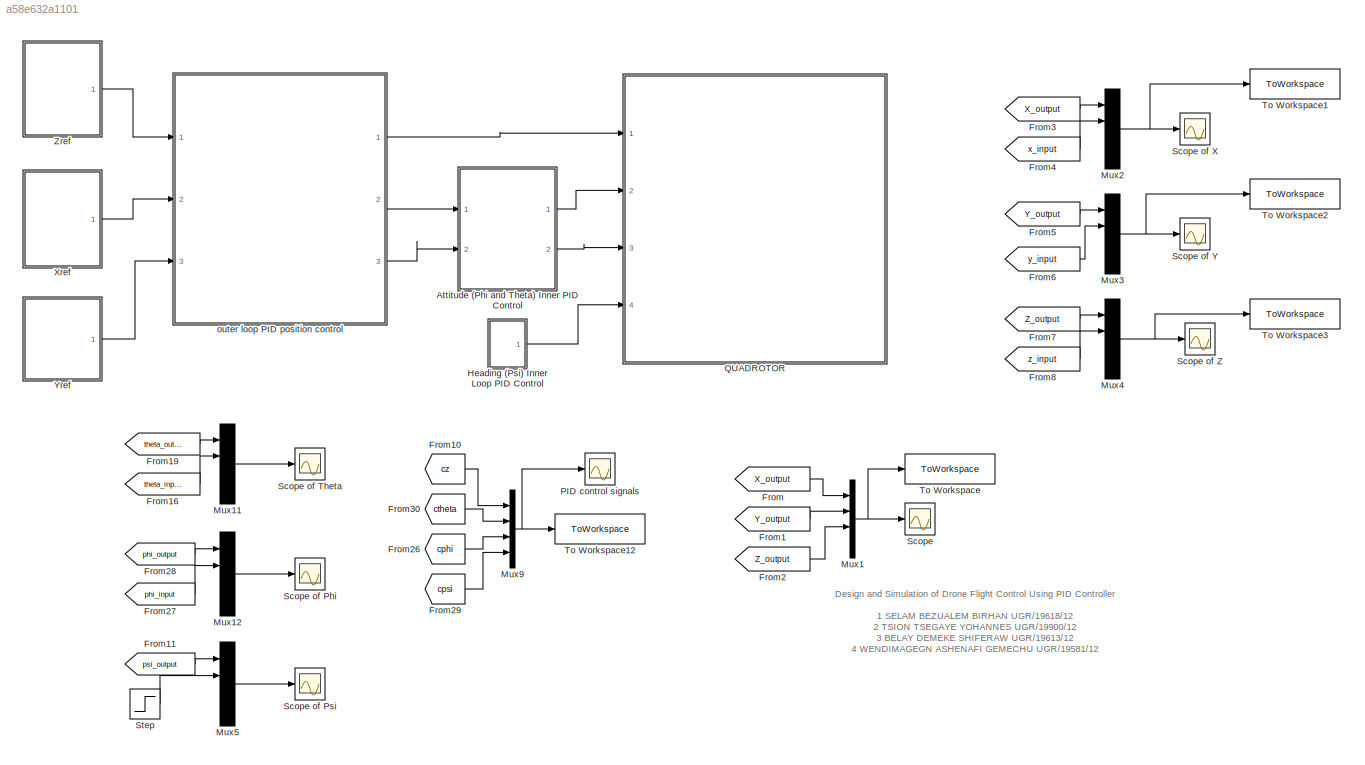
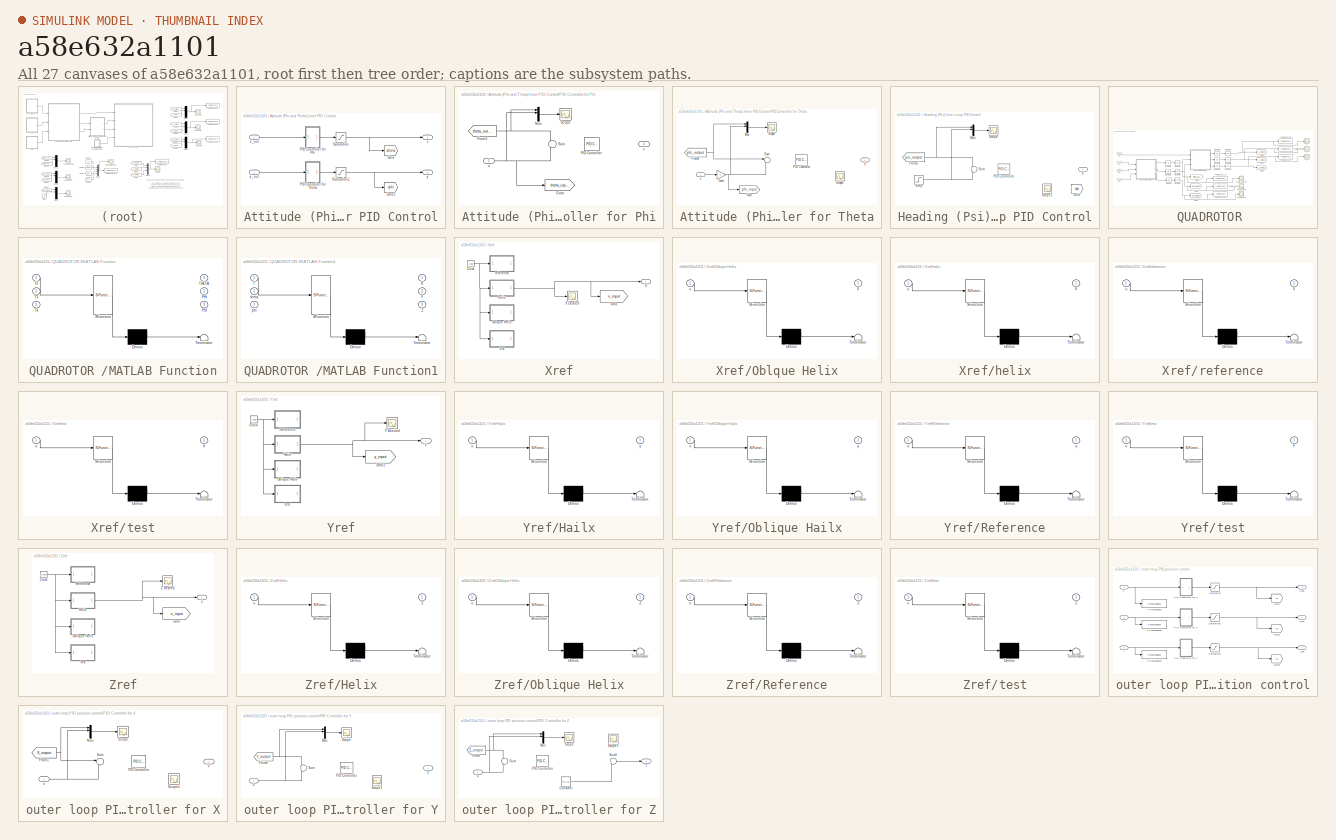
[diagram: thumbnail index - all 27 canvases of the model, root first then tree order]
MODEL slx_a58e632a1101
KIND model
CONFIG AbsTol = auto
CONFIG EnableMultiTasking = off
CONFIG FixedStep = 1e-4
CONFIG MaxStep = 1e-2
CONFIG MinStep = auto
CONFIG RelTol = 1e-3
CONFIG SampleTimeConstraint = Unconstrained
CONFIG SolverName = VariableStepAuto
CONFIG StartTime = 0
CONFIG StopTime = 30
BLOCK [SubSystem] Attitude (Phi and Theta) Inner PID Control
  Ports = [2, 2]
  RequestExecContextInheritance = off
BLOCK [Goto] Attitude (Phi and Theta) Inner PID Control/Goto
  GotoTag = ctheta
  TagVisibility = global
BLOCK [Goto] Attitude (Phi and Theta) Inner PID Control/Goto1
  GotoTag = cphi
  TagVisibility = global
BLOCK [SubSystem] Attitude (Phi and Theta) Inner PID Control/PID Controller for Phi
  Ports = [1, 1]
  RequestExecContextInheritance = off
BLOCK [From] Attitude (Phi and Theta) Inner PID Control/PID Controller for Phi/From3
  GotoTag = theta_output
  TagVisibility = global
BLOCK [Goto] Attitude (Phi and Theta) Inner PID Control/PID Controller for Phi/Goto
  GotoTag = theta_input
  TagVisibility = global
BLOCK [Mux] Attitude (Phi and Theta) Inner PID Control/PID Controller for Phi/Mux
  DisplayOption = bar
  Inputs = 2
  Ports = [4, 1]
BLOCK [Reference] Attitude (Phi and Theta) Inner PID Control/PID Controller for Phi/PID Controller  REF=slpidlib/PID Controller
  Ports = []
  SourceBlock = slpidlib/PID Controller
  SourceType = PID 1dof
BLOCK [Scope] Attitude (Phi and Theta) Inner PID Control/PID Controller for Phi/Scope
  Floating = off
  NumInputPorts = 1
  Ports = [1]
  ScopeSpecificationString = Simulink.scopes.TimeScopeBlockCfg('CurrentConfiguration', extmgr.ConfigurationSet(extmgr.Configuration('Core','General UI',true),extmgr.Configuration('Core','Source UI',true),extmgr.Configuration('Sources','WiredSimulink',true,'DataLoggingVariableName','ScopeData5'),extmgr.Configuration('Visuals','Time Domain',true,'SerializedDisplays',{struct('MinYLimReal','-0.08785','MaxYLimReal','0.09154','YLab...<+1401ch>
BLOCK [Sum] Attitude (Phi and Theta) Inner PID Control/PID Controller for Phi/Sum
  Inputs = -+
  Ports = [2, 1]
BLOCK [Inport] Attitude (Phi and Theta) Inner PID Control/PID Controller for Phi/u
BLOCK [Outport] Attitude (Phi and Theta) Inner PID Control/PID Controller for Phi/x
BLOCK [SubSystem] Attitude (Phi and Theta) Inner PID Control/PID Controller for Theta
  Ports = [1, 1]
  RequestExecContextInheritance = off
BLOCK [From] Attitude (Phi and Theta) Inner PID Control/PID Controller for Theta/From4
  GotoTag = phi_output
  TagVisibility = global
BLOCK [Gain] Attitude (Phi and Theta) Inner PID Control/PID Controller for Theta/Gain
  Gain = -1
BLOCK [Goto] Attitude (Phi and Theta) Inner PID Control/PID Controller for Theta/Goto
  GotoTag = phi_input
  TagVisibility = global
BLOCK [Mux] Attitude (Phi and Theta) Inner PID Control/PID Controller for Theta/Mux
  DisplayOption = bar
  Inputs = 2
  Ports = [4, 1]
BLOCK [Reference] Attitude (Phi and Theta) Inner PID Control/PID Controller for Theta/PID Controller  REF=slpidlib/PID Controller
  Ports = []
  SourceBlock = slpidlib/PID Controller
  SourceType = PID 1dof
BLOCK [Scope] Attitude (Phi and Theta) Inner PID Control/PID Controller for Theta/Scope
  Floating = off
  NumInputPorts = 1
  Ports = [1]
  ScopeSpecificationString = Simulink.scopes.TimeScopeBlockCfg('CurrentConfiguration', extmgr.ConfigurationSet(extmgr.Configuration('Core','General UI',true),extmgr.Configuration('Core','Source UI',true),extmgr.Configuration('Sources','WiredSimulink',true,'DataLoggingVariableName','ScopeData1'),extmgr.Configuration('Visuals','Time Domain',true,'SerializedDisplays',{struct('MinYLimReal','-0.24256','MaxYLimReal','0.25431','YLab...<+1404ch>
BLOCK [Scope] Attitude (Phi and Theta) Inner PID Control/PID Controller for Theta/Scope1
  Floating = off
  NumInputPorts = 1
  Ports = [1]
  ScopeSpecificationString = Simulink.scopes.TimeScopeBlockCfg('CurrentConfiguration', extmgr.ConfigurationSet(extmgr.Configuration('Core','General UI',true),extmgr.Configuration('Core','Source UI',true),extmgr.Configuration('Sources','WiredSimulink',true,'DataLoggingVariableName','ScopeData3'),extmgr.Configuration('Visuals','Time Domain',true,'SerializedDisplays',{struct('MinYLimReal','-3.96845','MaxYLimReal','3.99625','YLab...<+1373ch>
BLOCK [Sum] Attitude (Phi and Theta) Inner PID Control/PID Controller for Theta/Sum
  Inputs = -+
  Ports = [2, 1]
BLOCK [Inport] Attitude (Phi and Theta) Inner PID Control/PID Controller for Theta/u
BLOCK [Outport] Attitude (Phi and Theta) Inner PID Control/PID Controller for Theta/y
BLOCK [Saturate] Attitude (Phi and Theta) Inner PID Control/Saturation
  LowerLimit = -1
  UpperLimit = 1
BLOCK [Saturate] Attitude (Phi and Theta) Inner PID Control/Saturation1
  LowerLimit = -1
  UpperLimit = 1
BLOCK [Outport] Attitude (Phi and Theta) Inner PID Control/x
BLOCK [Inport] Attitude (Phi and Theta) Inner PID Control/x_out
BLOCK [Outport] Attitude (Phi and Theta) Inner PID Control/y
  Port = 2
BLOCK [Inport] Attitude (Phi and Theta) Inner PID Control/y_out
  Port = 2
BLOCK [From] From
  GotoTag = X_output
  TagVisibility = global
BLOCK [From] From1
  GotoTag = Y_output
  TagVisibility = global
BLOCK [From] From10
  GotoTag = cz
  NameLocation = top
  TagVisibility = global
BLOCK [From] From11
  GotoTag = psi_output
  TagVisibility = global
BLOCK [From] From16
  GotoTag = theta_input
  TagVisibility = global
BLOCK [From] From19
  GotoTag = theta_output
  TagVisibility = global
BLOCK [From] From2
  GotoTag = Z_output
  TagVisibility = global
BLOCK [From] From26
  GotoTag = cphi
  TagVisibility = global
BLOCK [From] From27
  GotoTag = phi_input
  TagVisibility = global
BLOCK [From] From28
  GotoTag = phi_output
  TagVisibility = global
BLOCK [From] From29
  GotoTag = cpsi
  TagVisibility = global
BLOCK [From] From3
  GotoTag = X_output
  TagVisibility = global
BLOCK [From] From30
  GotoTag = ctheta
  TagVisibility = global
BLOCK [From] From4
  GotoTag = x_input
  TagVisibility = global
BLOCK [From] From5
  GotoTag = Y_output
  TagVisibility = global
BLOCK [From] From6
  GotoTag = y_input
  TagVisibility = global
BLOCK [From] From7
  GotoTag = Z_output
  TagVisibility = global
BLOCK [From] From8
  GotoTag = z_input
  TagVisibility = global
BLOCK [SubSystem] Heading (Psi) Inner Loop PID Control
  Ports = [0, 1]
  RequestExecContextInheritance = off
BLOCK [From] Heading (Psi) Inner Loop PID Control/From5
  GotoTag = psi_output
  TagVisibility = global
BLOCK [Goto] Heading (Psi) Inner Loop PID Control/Goto
  GotoTag = cpsi
  TagVisibility = global
BLOCK [Mux] Heading (Psi) Inner Loop PID Control/Mux
  DisplayOption = bar
  Inputs = 2
  Ports = [4, 1]
BLOCK [Reference] Heading (Psi) Inner Loop PID Control/PID Controller  REF=slpidlib/PID Controller
  Ports = []
  SourceBlock = slpidlib/PID Controller
  SourceType = PID 1dof
BLOCK [Scope] Heading (Psi) Inner Loop PID Control/Scope
  Floating = off
  NumInputPorts = 1
  Ports = [1]
  ScopeSpecificationString = Simulink.scopes.TimeScopeBlockCfg('CurrentConfiguration', extmgr.ConfigurationSet(extmgr.Configuration('Core','General UI',true),extmgr.Configuration('Core','Source UI',true),extmgr.Configuration('Sources','WiredSimulink',true,'DataLoggingVariableName','ScopeData4'),extmgr.Configuration('Visuals','Time Domain',true,'SerializedDisplays',{struct('MinYLimReal','-0.02768','MaxYLimReal','0.24912','YLab...<+1460ch>
BLOCK [Scope] Heading (Psi) Inner Loop PID Control/Scope1
  Floating = off
  NumInputPorts = 1
  Ports = [1]
  ScopeSpecificationString = Simulink.scopes.TimeScopeBlockCfg('CurrentConfiguration', extmgr.ConfigurationSet(extmgr.Configuration('Core','General UI',true),extmgr.Configuration('Core','Source UI',true),extmgr.Configuration('Sources','WiredSimulink',true,'DataLoggingVariableName','ScopeData8'),extmgr.Configuration('Visuals','Time Domain',true,'SerializedDisplays',{struct('MinYLimReal','-0.00165','MaxYLimReal','0.00666','YLab...<+1373ch>
BLOCK [Step] Heading (Psi) Inner Loop PID Control/Step
  After = 0.2
  SampleTime = 0
  Time = 5
BLOCK [Sum] Heading (Psi) Inner Loop PID Control/Sum
  Inputs = -+
  Ports = [2, 1]
BLOCK [Outport] Heading (Psi) Inner Loop PID Control/y
BLOCK [Mux] Mux1
  DisplayOption = bar
  Inputs = 3
  Ports = [4, 1]
BLOCK [Mux] Mux11
  DisplayOption = bar
  Inputs = 2
  Ports = [4, 1]
BLOCK [Mux] Mux12
  DisplayOption = bar
  Inputs = 2
  Ports = [4, 1]
BLOCK [Mux] Mux2
  DisplayOption = bar
  Inputs = 2
  Ports = [4, 1]
BLOCK [Mux] Mux3
  DisplayOption = bar
  Inputs = 2
  Ports = [4, 1]
BLOCK [Mux] Mux4
  DisplayOption = bar
  Inputs = 2
  Ports = [4, 1]
BLOCK [Mux] Mux5
  DisplayOption = bar
  Inputs = 2
  Ports = [4, 1]
BLOCK [Mux] Mux9
  DisplayOption = bar
  Ports = [4, 1]
BLOCK [Scope] PID control signals
  Floating = off
  NumInputPorts = 1
  Ports = [1]
  ScopeSpecificationString = Simulink.scopes.TimeScopeBlockCfg('CurrentConfiguration', extmgr.ConfigurationSet(extmgr.Configuration('Core','General UI',true,'FigureColor',[0.941176470588235 0.941176470588235 0.941176470588235]),extmgr.Configuration('Core','Source UI',true),extmgr.Configuration('Sources','WiredSimulink',true,'DataLoggingVariableName','ScopeData8'),extmgr.Configuration('Visuals','Time Domain',true,'SerializedDi...<+1975ch>
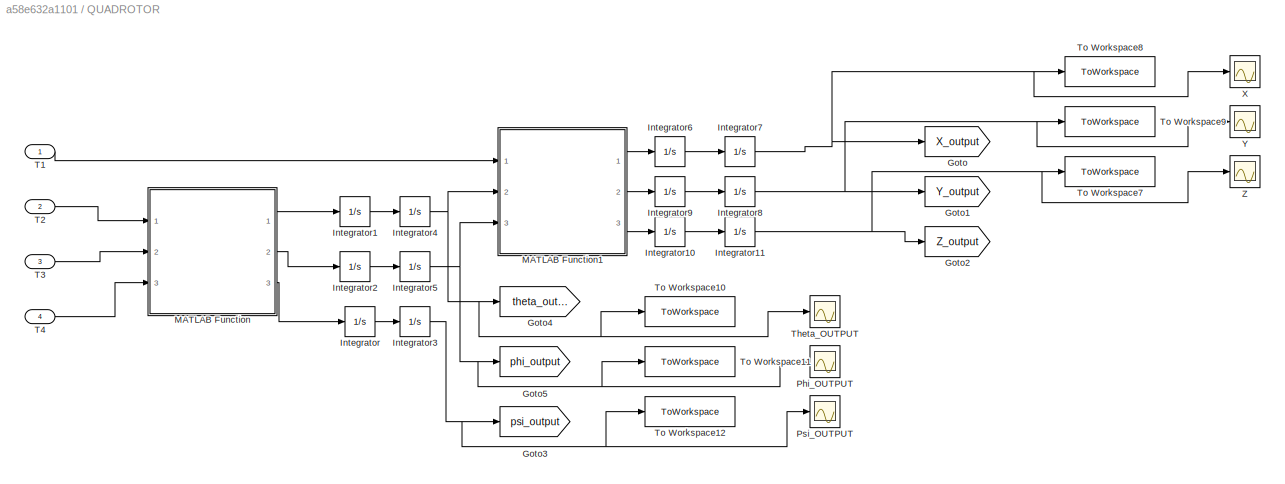
BLOCK [SubSystem] QUADROTOR 
  Ports = [4]
  RequestExecContextInheritance = off
BLOCK [Goto] QUADROTOR /Goto
  GotoTag = X_output
  TagVisibility = global
BLOCK [Goto] QUADROTOR /Goto1
  GotoTag = Y_output
  TagVisibility = global
BLOCK [Goto] QUADROTOR /Goto2
  GotoTag = Z_output
  TagVisibility = global
BLOCK [Goto] QUADROTOR /Goto3
  GotoTag = psi_output
  TagVisibility = global
BLOCK [Goto] QUADROTOR /Goto4
  GotoTag = theta_output
  TagVisibility = global
BLOCK [Goto] QUADROTOR /Goto5
  GotoTag = phi_output
  TagVisibility = global
BLOCK [Integrator] QUADROTOR /Integrator
  Ports = [1, 1]
BLOCK [Integrator] QUADROTOR /Integrator1
  Ports = [1, 1]
BLOCK [Integrator] QUADROTOR /Integrator10
  Ports = [1, 1]
BLOCK [Integrator] QUADROTOR /Integrator11
  Ports = [1, 1]
BLOCK [Integrator] QUADROTOR /Integrator2
  Ports = [1, 1]
BLOCK [Integrator] QUADROTOR /Integrator3
  Ports = [1, 1]
BLOCK [Integrator] QUADROTOR /Integrator4
  Ports = [1, 1]
BLOCK [Integrator] QUADROTOR /Integrator5
  Ports = [1, 1]
BLOCK [Integrator] QUADROTOR /Integrator6
  Ports = [1, 1]
BLOCK [Integrator] QUADROTOR /Integrator7
  Ports = [1, 1]
BLOCK [Integrator] QUADROTOR /Integrator8
  Ports = [1, 1]
BLOCK [Integrator] QUADROTOR /Integrator9
  Ports = [1, 1]
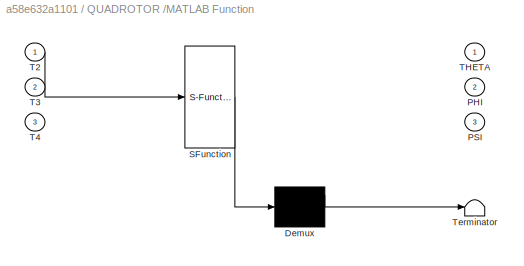
BLOCK [SubSystem] QUADROTOR /MATLAB Function
  ErrorFcn = Stateflow.Translate.translate
  PermitHierarchicalResolution = ExplicitOnly
  Ports = [3, 3]
  RequestExecContextInheritance = off
  SFBlockType = MATLAB Function
  TreatAsAtomicUnit = on
BLOCK [Demux] QUADROTOR /MATLAB Function/ Demux 
  Outputs = 1
  Ports = [1, 4]
BLOCK [S-Function] QUADROTOR /MATLAB Function/ SFunction 
  EnableBusSupport = on
  FunctionName = sf_sfun
  PortCounts = [3 4]
  Ports = [1, 1]
  SFcnIsStateOwnerBlock = off
  SFunctionDeploymentMode = off
  Tag = Stateflow S-Function 12
BLOCK [Terminator] QUADROTOR /MATLAB Function/ Terminator 
BLOCK [Outport] QUADROTOR /MATLAB Function/PHI
  Port = 2
BLOCK [Outport] QUADROTOR /MATLAB Function/PSI
  Port = 3
BLOCK [Inport] QUADROTOR /MATLAB Function/T2
BLOCK [Inport] QUADROTOR /MATLAB Function/T3
  Port = 2
BLOCK [Inport] QUADROTOR /MATLAB Function/T4
  Port = 3
BLOCK [Outport] QUADROTOR /MATLAB Function/THETA
BLOCK [SubSystem] QUADROTOR /MATLAB Function1
  ErrorFcn = Stateflow.Translate.translate
  PermitHierarchicalResolution = ExplicitOnly
  Ports = [3, 3]
  RequestExecContextInheritance = off
  SFBlockType = MATLAB Function
  TreatAsAtomicUnit = on
BLOCK [Demux] QUADROTOR /MATLAB Function1/ Demux 
  Outputs = 1
  Ports = [1, 4]
BLOCK [S-Function] QUADROTOR /MATLAB Function1/ SFunction 
  EnableBusSupport = on
  FunctionName = sf_sfun
  PortCounts = [3 4]
  Ports = [1, 1]
  SFcnIsStateOwnerBlock = off
  SFunctionDeploymentMode = off
  Tag = Stateflow S-Function 13
BLOCK [Terminator] QUADROTOR /MATLAB Function1/ Terminator 
BLOCK [Inport] QUADROTOR /MATLAB Function1/T
BLOCK [Outport] QUADROTOR /MATLAB Function1/X
BLOCK [Outport] QUADROTOR /MATLAB Function1/Y
  Port = 2
BLOCK [Outport] QUADROTOR /MATLAB Function1/Z
  Port = 3
BLOCK [Inport] QUADROTOR /MATLAB Function1/phi
  Port = 3
BLOCK [Inport] QUADROTOR /MATLAB Function1/theta
  Port = 2
BLOCK [Scope] QUADROTOR /Phi_OUTPUT
  Floating = off
  NumInputPorts = 1
  Ports = [1]
  ScopeSpecificationString = Simulink.scopes.TimeScopeBlockCfg('CurrentConfiguration', extmgr.ConfigurationSet(extmgr.Configuration('Core','General UI',true),extmgr.Configuration('Core','Source UI',true),extmgr.Configuration('Sources','WiredSimulink',true,'DataLoggingVariableName','ScopeData5'),extmgr.Configuration('Visuals','Time Domain',true,'SerializedDisplays',{struct('MinYLimReal','-0.13341','MaxYLimReal','0.13342','YLab...<+1379ch>
BLOCK [Scope] QUADROTOR /Psi_OUTPUT
  Floating = off
  NumInputPorts = 1
  Ports = [1]
  ScopeSpecificationString = Simulink.scopes.TimeScopeBlockCfg('CurrentConfiguration', extmgr.ConfigurationSet(extmgr.Configuration('Core','General UI',true),extmgr.Configuration('Core','Source UI',true),extmgr.Configuration('Sources','WiredSimulink',true,'DataLoggingVariableName','ScopeData6'),extmgr.Configuration('Visuals','Time Domain',true,'SerializedDisplays',{struct('MinYLimReal','-0.02768','MaxYLimReal','0.24912','YLab...<+1379ch>
BLOCK [Inport] QUADROTOR /T1
BLOCK [Inport] QUADROTOR /T2
  Port = 2
BLOCK [Inport] QUADROTOR /T3
  Port = 3
BLOCK [Inport] QUADROTOR /T4
  Port = 4
BLOCK [Scope] QUADROTOR /Theta_OUTPUT
  Floating = off
  NumInputPorts = 1
  Ports = [1]
  ScopeSpecificationString = Simulink.scopes.TimeScopeBlockCfg('CurrentConfiguration', extmgr.ConfigurationSet(extmgr.Configuration('Core','General UI',true),extmgr.Configuration('Core','Source UI',true),extmgr.Configuration('Sources','WiredSimulink',true,'DataLoggingVariableName','ScopeData4'),extmgr.Configuration('Visuals','Time Domain',true,'SerializedDisplays',{struct('MinYLimReal','-0.02842','MaxYLimReal','0.02842','YLab...<+1383ch>
BLOCK [ToWorkspace] QUADROTOR /To Workspace10
  FixptAsFi = on
  MaxDataPoints = inf
  Ports = [1]
  SampleTime = -1
  Save2DSignal = 2-D array (concatenate along first dimension)
  VariableName = Theta_OUTPUT
BLOCK [ToWorkspace] QUADROTOR /To Workspace11
  FixptAsFi = on
  MaxDataPoints = inf
  Ports = [1]
  SampleTime = -1
  Save2DSignal = 2-D array (concatenate along first dimension)
  VariableName = Phi_OUTPUT
BLOCK [ToWorkspace] QUADROTOR /To Workspace12
  FixptAsFi = on
  MaxDataPoints = inf
  Ports = [1]
  SampleTime = -1
  Save2DSignal = 2-D array (concatenate along first dimension)
  VariableName = Psi_OUTPUT
BLOCK [ToWorkspace] QUADROTOR /To Workspace7
  FixptAsFi = on
  MaxDataPoints = inf
  Ports = [1]
  SampleTime = -1
  Save2DSignal = 2-D array (concatenate along first dimension)
  VariableName = Z_OUTPUT
BLOCK [ToWorkspace] QUADROTOR /To Workspace8
  FixptAsFi = on
  MaxDataPoints = inf
  Ports = [1]
  SampleTime = -1
  Save2DSignal = 2-D array (concatenate along first dimension)
  VariableName = X_OUTPUT
BLOCK [ToWorkspace] QUADROTOR /To Workspace9
  FixptAsFi = on
  MaxDataPoints = inf
  Ports = [1]
  SampleTime = -1
  Save2DSignal = 2-D array (concatenate along first dimension)
  VariableName = Y_OUTPUT
BLOCK [Scope] QUADROTOR /X
  Floating = off
  NumInputPorts = 1
  Ports = [1]
  ScopeSpecificationString = Simulink.scopes.TimeScopeBlockCfg('CurrentConfiguration', extmgr.ConfigurationSet(extmgr.Configuration('Core','General UI',true,'FigureColor',[0.941176470588235 0.941176470588235 0.941176470588235]),extmgr.Configuration('Core','Source UI',true),extmgr.Configuration('Sources','WiredSimulink',true,'DataLoggingVariableName','ScopeData1'),extmgr.Configuration('Visuals','Time Domain',true,'SerializedDi...<+1669ch>
BLOCK [Scope] QUADROTOR /Y
  Floating = off
  NumInputPorts = 1
  Ports = [1]
  ScopeSpecificationString = Simulink.scopes.TimeScopeBlockCfg('CurrentConfiguration', extmgr.ConfigurationSet(extmgr.Configuration('Core','General UI',true,'FigureColor',[0.941176470588235 0.941176470588235 0.941176470588235]),extmgr.Configuration('Core','Source UI',true),extmgr.Configuration('Sources','WiredSimulink',true,'DataLoggingVariableName','ScopeData2'),extmgr.Configuration('Visuals','Time Domain',true,'SerializedDi...<+1668ch>
BLOCK [Scope] QUADROTOR /Z
  Floating = off
  NumInputPorts = 1
  Ports = [1]
  ScopeSpecificationString = Simulink.scopes.TimeScopeBlockCfg('CurrentConfiguration', extmgr.ConfigurationSet(extmgr.Configuration('Core','General UI',true,'FigureColor',[0.941176470588235 0.941176470588235 0.941176470588235]),extmgr.Configuration('Core','Source UI',true),extmgr.Configuration('Sources','WiredSimulink',true,'DataLoggingVariableName','ScopeData3'),extmgr.Configuration('Visuals','Time Domain',true,'SerializedDi...<+1665ch>
BLOCK [Scope] Scope
  Floating = off
  NumInputPorts = 1
  Ports = [1]
  ScopeSpecificationString = Simulink.scopes.TimeScopeBlockCfg('CurrentConfiguration', extmgr.ConfigurationSet(extmgr.Configuration('Core','General UI',true,'FigureColor',[0.941176470588235 0.941176470588235 0.941176470588235]),extmgr.Configuration('Core','Source UI',true),extmgr.Configuration('Sources','WiredSimulink',true),extmgr.Configuration('Visuals','Time Domain',true,'SerializedDisplays',{struct('MinYLimReal','-9.69985...<+1659ch>
BLOCK [Scope] Scope of Phi
  Floating = off
  NumInputPorts = 1
  Ports = [1]
  ScopeSpecificationString = Simulink.scopes.TimeScopeBlockCfg('CurrentConfiguration', extmgr.ConfigurationSet(extmgr.Configuration('Core','General UI',true,'FigureColor',[0.941176470588235 0.941176470588235 0.941176470588235]),extmgr.Configuration('Core','Source UI',true),extmgr.Configuration('Sources','WiredSimulink',true,'DataLoggingVariableName','ScopeData5'),extmgr.Configuration('Visuals','Time Domain',true,'SerializedDi...<+1766ch>
BLOCK [Scope] Scope of Psi
  Floating = off
  NumInputPorts = 1
  Ports = [1]
  ScopeSpecificationString = Simulink.scopes.TimeScopeBlockCfg('CurrentConfiguration', extmgr.ConfigurationSet(extmgr.Configuration('Core','General UI',true,'FigureColor',[0.941176470588235 0.941176470588235 0.941176470588235]),extmgr.Configuration('Core','Source UI',true),extmgr.Configuration('Sources','WiredSimulink',true,'DataLoggingVariableName','ScopeData6'),extmgr.Configuration('Visuals','Time Domain',true,'SerializedDi...<+1809ch>
BLOCK [Scope] Scope of Theta
  Floating = off
  NumInputPorts = 1
  Ports = [1]
  ScopeSpecificationString = Simulink.scopes.TimeScopeBlockCfg('CurrentConfiguration', extmgr.ConfigurationSet(extmgr.Configuration('Core','General UI',true,'FigureColor',[0.941176470588235 0.941176470588235 0.941176470588235]),extmgr.Configuration('Core','Source UI',true),extmgr.Configuration('Sources','WiredSimulink',true,'DataLoggingVariableName','ScopeData4'),extmgr.Configuration('Visuals','Time Domain',true,'SerializedDi...<+1791ch>
BLOCK [Scope] Scope of X
  Floating = off
  NumInputPorts = 1
  Ports = [1]
  ScopeSpecificationString = Simulink.scopes.TimeScopeBlockCfg('CurrentConfiguration', extmgr.ConfigurationSet(extmgr.Configuration('Core','General UI',true,'FigureColor',[0.941176470588235 0.941176470588235 0.941176470588235]),extmgr.Configuration('Core','Source UI',true),extmgr.Configuration('Sources','WiredSimulink',true,'DataLoggingVariableName','ScopeData1'),extmgr.Configuration('Visuals','Time Domain',true,'SerializedDi...<+1777ch>
BLOCK [Scope] Scope of Y
  Floating = off
  NumInputPorts = 1
  Ports = [1]
  ScopeSpecificationString = Simulink.scopes.TimeScopeBlockCfg('CurrentConfiguration', extmgr.ConfigurationSet(extmgr.Configuration('Core','General UI',true,'FigureColor',[0.941176470588235 0.941176470588235 0.941176470588235]),extmgr.Configuration('Core','Source UI',true),extmgr.Configuration('Sources','WiredSimulink',true,'DataLoggingVariableName','ScopeData2'),extmgr.Configuration('Visuals','Time Domain',true,'SerializedDi...<+1776ch>
BLOCK [Scope] Scope of Z
  Floating = off
  NumInputPorts = 1
  Ports = [1]
  ScopeSpecificationString = Simulink.scopes.TimeScopeBlockCfg('CurrentConfiguration', extmgr.ConfigurationSet(extmgr.Configuration('Core','General UI',true,'FigureColor',[0.831372549019608 0.815686274509804 0.784313725490196]),extmgr.Configuration('Core','Source UI',true),extmgr.Configuration('Sources','WiredSimulink',true,'DataLoggingVariableName','ScopeData3'),extmgr.Configuration('Visuals','Time Domain',true,'SerializedDi...<+1765ch>
BLOCK [Step] Step
  After = 0.2
  SampleTime = 0
  Time = 5
BLOCK [ToWorkspace] To Workspace
  FixptAsFi = on
  MaxDataPoints = inf
  Ports = [1]
  SampleTime = -1
  SaveFormat = Timeseries
  VariableName = output
BLOCK [ToWorkspace] To Workspace1
  FixptAsFi = on
  MaxDataPoints = inf
  Ports = [1]
  SampleTime = -1
  SaveFormat = Timeseries
  VariableName = x_total
BLOCK [ToWorkspace] To Workspace12
  FixptAsFi = on
  MaxDataPoints = inf
  Ports = [1]
  SampleTime = -1
  Save2DSignal = 2-D array (concatenate along first dimension)
  VariableName = Control
BLOCK [ToWorkspace] To Workspace2
  FixptAsFi = on
  MaxDataPoints = inf
  Ports = [1]
  SampleTime = -1
  SaveFormat = Timeseries
  VariableName = y_total
BLOCK [ToWorkspace] To Workspace3
  FixptAsFi = on
  MaxDataPoints = inf
  Ports = [1]
  SampleTime = -1
  SaveFormat = Timeseries
  VariableName = z_total
BLOCK [SubSystem] Xref
  Ports = [0, 1]
  RequestExecContextInheritance = off
BLOCK [Clock] Xref/Clock
  Decimation = 200
BLOCK [Goto] Xref/Goto
  GotoTag = x_input
  TagVisibility = global
BLOCK [SubSystem] Xref/Oblque Helix
  ErrorFcn = Stateflow.Translate.translate
  PermitHierarchicalResolution = ExplicitOnly
  Ports = [1, 1]
  RequestExecContextInheritance = off
  SFBlockType = MATLAB Function
  TreatAsAtomicUnit = on
BLOCK [Demux] Xref/Oblque Helix/ Demux 
  Outputs = 1
  Ports = [1, 4]
BLOCK [S-Function] Xref/Oblque Helix/ SFunction 
  EnableBusSupport = on
  FunctionName = sf_sfun
  PortCounts = [1 2]
  Ports = [1, 1]
  SFcnIsStateOwnerBlock = off
  SFunctionDeploymentMode = off
  Tag = Stateflow S-Function 2
BLOCK [Terminator] Xref/Oblque Helix/ Terminator 
BLOCK [Outport] Xref/Oblque Helix/X
BLOCK [Inport] Xref/Oblque Helix/u
BLOCK [Outport] Xref/X
BLOCK [Scope] Xref/X Desried
  Floating = off
  NumInputPorts = 1
  Ports = [1]
  ScopeSpecificationString = Simulink.scopes.TimeScopeBlockCfg('CurrentConfiguration', extmgr.ConfigurationSet(extmgr.Configuration('Core','General UI',true,'FigureColor',[1 1 1]),extmgr.Configuration('Core','Source UI',true),extmgr.Configuration('Sources','WiredSimulink',true,'DataLoggingVariableName','ScopeData5'),extmgr.Configuration('Visuals','Time Domain',true,'SerializedDisplays',{struct('MinYLimReal','-1.74999','MaxYLi...<+1615ch>
BLOCK [SubSystem] Xref/helix
  ErrorFcn = Stateflow.Translate.translate
  PermitHierarchicalResolution = ExplicitOnly
  Ports = [1, 1]
  RequestExecContextInheritance = off
  SFBlockType = MATLAB Function
  TreatAsAtomicUnit = on
BLOCK [Demux] Xref/helix/ Demux 
  Outputs = 1
  Ports = [1, 4]
BLOCK [S-Function] Xref/helix/ SFunction 
  EnableBusSupport = on
  FunctionName = sf_sfun
  PortCounts = [1 2]
  Ports = [1, 1]
  SFcnIsStateOwnerBlock = off
  SFunctionDeploymentMode = off
  Tag = Stateflow S-Function 17
BLOCK [Terminator] Xref/helix/ Terminator 
BLOCK [Outport] Xref/helix/X
BLOCK [Inport] Xref/helix/u
BLOCK [SubSystem] Xref/reference
  ErrorFcn = Stateflow.Translate.translate
  PermitHierarchicalResolution = ExplicitOnly
  Ports = [1, 1]
  RequestExecContextInheritance = off
  SFBlockType = MATLAB Function
  TreatAsAtomicUnit = on
BLOCK [Demux] Xref/reference/ Demux 
  Outputs = 1
  Ports = [1, 4]
BLOCK [S-Function] Xref/reference/ SFunction 
  EnableBusSupport = on
  FunctionName = sf_sfun
  PortCounts = [1 2]
  Ports = [1, 1]
  SFcnIsStateOwnerBlock = off
  SFunctionDeploymentMode = off
  Tag = Stateflow S-Function 10
BLOCK [Terminator] Xref/reference/ Terminator 
BLOCK [Outport] Xref/reference/X
BLOCK [Inport] Xref/reference/u
BLOCK [SubSystem] Xref/test
  ErrorFcn = Stateflow.Translate.translate
  PermitHierarchicalResolution = ExplicitOnly
  Ports = [1, 1]
  RequestExecContextInheritance = off
  SFBlockType = MATLAB Function
  TreatAsAtomicUnit = on
BLOCK [Demux] Xref/test/ Demux 
  Outputs = 1
  Ports = [1, 4]
BLOCK [S-Function] Xref/test/ SFunction 
  EnableBusSupport = on
  FunctionName = sf_sfun
  PortCounts = [1 2]
  Ports = [1, 1]
  SFcnIsStateOwnerBlock = off
  SFunctionDeploymentMode = off
  Tag = Stateflow S-Function 5
BLOCK [Terminator] Xref/test/ Terminator 
BLOCK [Outport] Xref/test/X
BLOCK [Inport] Xref/test/u
BLOCK [SubSystem] Yref
  Ports = [0, 1]
  RequestExecContextInheritance = off
BLOCK [Clock] Yref/Clock
  Decimation = 200
BLOCK [Goto] Yref/Goto1
  GotoTag = y_input
  TagVisibility = global
BLOCK [SubSystem] Yref/Hailx
  ErrorFcn = Stateflow.Translate.translate
  PermitHierarchicalResolution = ExplicitOnly
  Ports = [1, 1]
  RequestExecContextInheritance = off
  SFBlockType = MATLAB Function
  TreatAsAtomicUnit = on
BLOCK [Demux] Yref/Hailx/ Demux 
  Outputs = 1
  Ports = [1, 4]
BLOCK [S-Function] Yref/Hailx/ SFunction 
  EnableBusSupport = on
  FunctionName = sf_sfun
  PortCounts = [1 2]
  Ports = [1, 1]
  SFcnIsStateOwnerBlock = off
  SFunctionDeploymentMode = off
  Tag = Stateflow S-Function 3
BLOCK [Terminator] Yref/Hailx/ Terminator 
BLOCK [Inport] Yref/Hailx/u
BLOCK [Outport] Yref/Hailx/y
BLOCK [SubSystem] Yref/Oblique Hailx
  ErrorFcn = Stateflow.Translate.translate
  PermitHierarchicalResolution = ExplicitOnly
  Ports = [1, 1]
  RequestExecContextInheritance = off
  SFBlockType = MATLAB Function
  TreatAsAtomicUnit = on
BLOCK [Demux] Yref/Oblique Hailx/ Demux 
  Outputs = 1
  Ports = [1, 4]
BLOCK [S-Function] Yref/Oblique Hailx/ SFunction 
  EnableBusSupport = on
  FunctionName = sf_sfun
  PortCounts = [1 2]
  Ports = [1, 1]
  SFcnIsStateOwnerBlock = off
  SFunctionDeploymentMode = off
  Tag = Stateflow S-Function 15
BLOCK [Terminator] Yref/Oblique Hailx/ Terminator 
BLOCK [Inport] Yref/Oblique Hailx/u
BLOCK [Outport] Yref/Oblique Hailx/y
BLOCK [SubSystem] Yref/Reference
  ErrorFcn = Stateflow.Translate.translate
  PermitHierarchicalResolution = ExplicitOnly
  Ports = [1, 1]
  RequestExecContextInheritance = off
  SFBlockType = MATLAB Function
  TreatAsAtomicUnit = on
BLOCK [Demux] Yref/Reference/ Demux 
  Outputs = 1
  Ports = [1, 4]
BLOCK [S-Function] Yref/Reference/ SFunction 
  EnableBusSupport = on
  FunctionName = sf_sfun
  PortCounts = [1 2]
  Ports = [1, 1]
  SFcnIsStateOwnerBlock = off
  SFunctionDeploymentMode = off
  Tag = Stateflow S-Function 9
BLOCK [Terminator] Yref/Reference/ Terminator 
BLOCK [Inport] Yref/Reference/u
BLOCK [Outport] Yref/Reference/y
BLOCK [Outport] Yref/Y
BLOCK [Scope] Yref/Y Desried
  Floating = off
  NumInputPorts = 1
  Ports = [1]
  ScopeSpecificationString = Simulink.scopes.TimeScopeBlockCfg('CurrentConfiguration', extmgr.ConfigurationSet(extmgr.Configuration('Core','General UI',true,'FigureColor',[0.941176470588235 0.941176470588235 0.941176470588235]),extmgr.Configuration('Core','Source UI',true),extmgr.Configuration('Sources','WiredSimulink',true,'DataLoggingVariableName','ScopeData7'),extmgr.Configuration('Visuals','Time Domain',true,'SerializedDi...<+1658ch>
BLOCK [SubSystem] Yref/test
  ErrorFcn = Stateflow.Translate.translate
  PermitHierarchicalResolution = ExplicitOnly
  Ports = [1, 1]
  RequestExecContextInheritance = off
  SFBlockType = MATLAB Function
  TreatAsAtomicUnit = on
BLOCK [Demux] Yref/test/ Demux 
  Outputs = 1
  Ports = [1, 4]
BLOCK [S-Function] Yref/test/ SFunction 
  EnableBusSupport = on
  FunctionName = sf_sfun
  PortCounts = [1 2]
  Ports = [1, 1]
  SFcnIsStateOwnerBlock = off
  SFunctionDeploymentMode = off
  Tag = Stateflow S-Function 6
BLOCK [Terminator] Yref/test/ Terminator 
BLOCK [Outport] Yref/test/Y
BLOCK [Inport] Yref/test/u
BLOCK [SubSystem] Zref
  Ports = [0, 1]
  RequestExecContextInheritance = off
BLOCK [Clock] Zref/Clock
  Decimation = 200
BLOCK [Goto] Zref/Goto
  GotoTag = z_input
  TagVisibility = global
BLOCK [SubSystem] Zref/Helix
  ErrorFcn = Stateflow.Translate.translate
  PermitHierarchicalResolution = ExplicitOnly
  Ports = [1, 1]
  RequestExecContextInheritance = off
  SFBlockType = MATLAB Function
  TreatAsAtomicUnit = on
BLOCK [Demux] Zref/Helix/ Demux 
  Outputs = 1
  Ports = [1, 4]
BLOCK [S-Function] Zref/Helix/ SFunction 
  EnableBusSupport = on
  FunctionName = sf_sfun
  PortCounts = [1 2]
  Ports = [1, 1]
  SFcnIsStateOwnerBlock = off
  SFunctionDeploymentMode = off
  Tag = Stateflow S-Function 14
BLOCK [Terminator] Zref/Helix/ Terminator 
BLOCK [Outport] Zref/Helix/Z
BLOCK [Inport] Zref/Helix/u
BLOCK [SubSystem] Zref/Oblique Helix
  ErrorFcn = Stateflow.Translate.translate
  PermitHierarchicalResolution = ExplicitOnly
  Ports = [1, 1]
  RequestExecContextInheritance = off
  SFBlockType = MATLAB Function
  TreatAsAtomicUnit = on
BLOCK [Demux] Zref/Oblique Helix/ Demux 
  Outputs = 1
  Ports = [1, 4]
BLOCK [S-Function] Zref/Oblique Helix/ SFunction 
  EnableBusSupport = on
  FunctionName = sf_sfun
  PortCounts = [1 2]
  Ports = [1, 1]
  SFcnIsStateOwnerBlock = off
  SFunctionDeploymentMode = off
  Tag = Stateflow S-Function 1
BLOCK [Terminator] Zref/Oblique Helix/ Terminator 
BLOCK [Outport] Zref/Oblique Helix/Z
BLOCK [Inport] Zref/Oblique Helix/u
BLOCK [SubSystem] Zref/Reference
  ErrorFcn = Stateflow.Translate.translate
  PermitHierarchicalResolution = ExplicitOnly
  Ports = [1, 1]
  RequestExecContextInheritance = off
  SFBlockType = MATLAB Function
  TreatAsAtomicUnit = on
BLOCK [Demux] Zref/Reference/ Demux 
  Outputs = 1
  Ports = [1, 4]
BLOCK [S-Function] Zref/Reference/ SFunction 
  EnableBusSupport = on
  FunctionName = sf_sfun
  PortCounts = [1 2]
  Ports = [1, 1]
  SFcnIsStateOwnerBlock = off
  SFunctionDeploymentMode = off
  Tag = Stateflow S-Function 11
BLOCK [Terminator] Zref/Reference/ Terminator 
BLOCK [Outport] Zref/Reference/Z
BLOCK [Inport] Zref/Reference/u
BLOCK [Outport] Zref/Z
BLOCK [Scope] Zref/Z Desried
  Floating = off
  NumInputPorts = 1
  Ports = [1]
  ScopeSpecificationString = Simulink.scopes.TimeScopeBlockCfg('CurrentConfiguration', extmgr.ConfigurationSet(extmgr.Configuration('Core','General UI',true,'FigureColor',[1 1 1]),extmgr.Configuration('Core','Source UI',true),extmgr.Configuration('Sources','WiredSimulink',true,'DataLoggingVariableName','ScopeData6'),extmgr.Configuration('Visuals','Time Domain',true,'SerializedDisplays',{struct('MinYLimReal','-3.75','MaxYLimRe...<+1674ch>
BLOCK [SubSystem] Zref/test
  ErrorFcn = Stateflow.Translate.translate
  PermitHierarchicalResolution = ExplicitOnly
  Ports = [1, 1]
  RequestExecContextInheritance = off
  SFBlockType = MATLAB Function
  TreatAsAtomicUnit = on
BLOCK [Demux] Zref/test/ Demux 
  Outputs = 1
  Ports = [1, 4]
BLOCK [S-Function] Zref/test/ SFunction 
  EnableBusSupport = on
  FunctionName = sf_sfun
  PortCounts = [1 2]
  Ports = [1, 1]
  SFcnIsStateOwnerBlock = off
  SFunctionDeploymentMode = off
  Tag = Stateflow S-Function 4
BLOCK [Terminator] Zref/test/ Terminator 
BLOCK [Outport] Zref/test/Z
BLOCK [Inport] Zref/test/u
BLOCK [SubSystem] outer loop PID position control
  Ports = [3, 3]
  RequestExecContextInheritance = off
BLOCK [Goto] outer loop PID position control/Goto
  GotoTag = cz
  TagVisibility = global
BLOCK [Goto] outer loop PID position control/Goto1
  GotoTag = cx
  TagVisibility = global
BLOCK [Goto] outer loop PID position control/Goto2
  GotoTag = cy
  TagVisibility = global
BLOCK [SubSystem] outer loop PID position control/PID Controller for X
  Ports = [1, 1]
  RequestExecContextInheritance = off
BLOCK [From] outer loop PID position control/PID Controller for X/From1
  GotoTag = X_output
  TagVisibility = global
BLOCK [Mux] outer loop PID position control/PID Controller for X/Mux
  DisplayOption = bar
  Inputs = 2
  Ports = [4, 1]
BLOCK [Reference] outer loop PID position control/PID Controller for X/PID Controller  REF=slpidlib/PID Controller
  Ports = []
  SourceBlock = slpidlib/PID Controller
  SourceType = PID 1dof
BLOCK [Scope] outer loop PID position control/PID Controller for X/Scope
  Floating = off
  NumInputPorts = 1
  Ports = [1]
  ScopeSpecificationString = Simulink.scopes.TimeScopeBlockCfg('CurrentConfiguration', extmgr.ConfigurationSet(extmgr.Configuration('Core','General UI',true),extmgr.Configuration('Core','Source UI',true),extmgr.Configuration('Sources','WiredSimulink',true,'DataLoggingVariableName','ScopeData2'),extmgr.Configuration('Visuals','Time Domain',true,'SerializedDisplays',{struct('MinYLimReal','-1.42323','MaxYLimReal','1.40363','YLab...<+1404ch>
BLOCK [Scope] outer loop PID position control/PID Controller for X/Scope1
  Floating = off
  NumInputPorts = 1
  Ports = [1]
  ScopeSpecificationString = Simulink.scopes.TimeScopeBlockCfg('CurrentConfiguration', extmgr.ConfigurationSet(extmgr.Configuration('Core','General UI',true),extmgr.Configuration('Core','Source UI',true),extmgr.Configuration('Sources','WiredSimulink',true,'DataLoggingVariableName','ScopeData6'),extmgr.Configuration('Visuals','Time Domain',true,'SerializedDisplays',{struct('MinYLimReal','-0.11219','MaxYLimReal','0.24777','YLab...<+1373ch>
BLOCK [Sum] outer loop PID position control/PID Controller for X/Sum
  Inputs = -+
  Ports = [2, 1]
BLOCK [Inport] outer loop PID position control/PID Controller for X/u
BLOCK [Outport] outer loop PID position control/PID Controller for X/x
BLOCK [SubSystem] outer loop PID position control/PID Controller for Y
  Ports = [1, 1]
  RequestExecContextInheritance = off
BLOCK [From] outer loop PID position control/PID Controller for Y/From2
  GotoTag = Y_output
  TagVisibility = global
BLOCK [Mux] outer loop PID position control/PID Controller for Y/Mux
  DisplayOption = bar
  Inputs = 2
  Ports = [4, 1]
BLOCK [Reference] outer loop PID position control/PID Controller for Y/PID Controller  REF=slpidlib/PID Controller
  Ports = []
  SourceBlock = slpidlib/PID Controller
  SourceType = PID 1dof
BLOCK [Scope] outer loop PID position control/PID Controller for Y/Scope
  Floating = off
  NumInputPorts = 1
  Ports = [1]
  ScopeSpecificationString = Simulink.scopes.TimeScopeBlockCfg('CurrentConfiguration', extmgr.ConfigurationSet(extmgr.Configuration('Core','General UI',true),extmgr.Configuration('Core','Source UI',true),extmgr.Configuration('Sources','WiredSimulink',true),extmgr.Configuration('Visuals','Time Domain',true,'SerializedDisplays',{struct('MinYLimReal','-1.13828','MaxYLimReal','0.1426','YLabelReal','','MinYLimMag','0.00000','MaxYL...<+1360ch>
BLOCK [Scope] outer loop PID position control/PID Controller for Y/Scope1
  Floating = off
  NumInputPorts = 1
  Ports = [1]
  ScopeSpecificationString = Simulink.scopes.TimeScopeBlockCfg('CurrentConfiguration', extmgr.ConfigurationSet(extmgr.Configuration('Core','General UI',true),extmgr.Configuration('Core','Source UI',true),extmgr.Configuration('Sources','WiredSimulink',true,'DataLoggingVariableName','ScopeData1'),extmgr.Configuration('Visuals','Time Domain',true,'SerializedDisplays',{struct('MinYLimReal','-1513.59644','MaxYLimReal','13620.71374...<+1399ch>
BLOCK [Sum] outer loop PID position control/PID Controller for Y/Sum
  Inputs = -+
  Ports = [2, 1]
BLOCK [Inport] outer loop PID position control/PID Controller for Y/u
BLOCK [Outport] outer loop PID position control/PID Controller for Y/y
BLOCK [SubSystem] outer loop PID position control/PID Controller for Z
  Ports = [1, 1]
  RequestExecContextInheritance = off
BLOCK [Constant] outer loop PID position control/PID Controller for Z/Constant
  Value = 9.8*.46
BLOCK [From] outer loop PID position control/PID Controller for Z/From
  GotoTag = Z_output
  TagVisibility = global
BLOCK [Mux] outer loop PID position control/PID Controller for Z/Mux
  DisplayOption = bar
  Inputs = 2
  Ports = [4, 1]
BLOCK [Reference] outer loop PID position control/PID Controller for Z/PID Controller  REF=slpidlib/PID Controller
  Ports = []
  SourceBlock = slpidlib/PID Controller
  SourceType = PID 1dof
BLOCK [Scope] outer loop PID position control/PID Controller for Z/Scope
  Floating = off
  NumInputPorts = 1
  Ports = [1]
  ScopeSpecificationString = Simulink.scopes.TimeScopeBlockCfg('CurrentConfiguration', extmgr.ConfigurationSet(extmgr.Configuration('Core','General UI',true),extmgr.Configuration('Core','Source UI',true),extmgr.Configuration('Sources','WiredSimulink',true,'DataLoggingVariableName','ScopeData3'),extmgr.Configuration('Visuals','Time Domain',true,'SerializedDisplays',{struct('MinYLimReal','-0.1934','MaxYLimReal','1.74063','YLabe...<+1400ch>
BLOCK [Scope] outer loop PID position control/PID Controller for Z/Scope1
  Floating = off
  NumInputPorts = 1
  Ports = [1]
  ScopeSpecificationString = Simulink.scopes.TimeScopeBlockCfg('CurrentConfiguration', extmgr.ConfigurationSet(extmgr.Configuration('Core','General UI',true),extmgr.Configuration('Core','Source UI',true),extmgr.Configuration('Sources','WiredSimulink',true,'DataLoggingVariableName','ScopeData7'),extmgr.Configuration('Visuals','Time Domain',true,'SerializedDisplays',{struct('MinYLimReal','-0.69177','MaxYLimReal','5.69644','YLab...<+1373ch>
BLOCK [Sum] outer loop PID position control/PID Controller for Z/Sum
  Inputs = -+
  Ports = [2, 1]
BLOCK [Sum] outer loop PID position control/PID Controller for Z/Sum1
  Inputs = |++
  Ports = [2, 1]
BLOCK [Inport] outer loop PID position control/PID Controller for Z/u
BLOCK [Outport] outer loop PID position control/PID Controller for Z/z
BLOCK [Saturate] outer loop PID position control/Saturation
  LowerLimit = 0
  UpperLimit = 8
BLOCK [Saturate] outer loop PID position control/Saturation1
  LowerLimit = -1
  UpperLimit = 1
BLOCK [Saturate] outer loop PID position control/Saturation2
  LowerLimit = -1
  UpperLimit = 1
BLOCK [ToWorkspace] outer loop PID position control/To Workspace
  FixptAsFi = on
  MaxDataPoints = inf
  Ports = [1]
  SampleTime = -1
  SaveFormat = Timeseries
  VariableName = z_input
BLOCK [ToWorkspace] outer loop PID position control/To Workspace1
  FixptAsFi = on
  MaxDataPoints = inf
  Ports = [1]
  SampleTime = -1
  SaveFormat = Timeseries
  VariableName = x_input
BLOCK [ToWorkspace] outer loop PID position control/To Workspace2
  FixptAsFi = on
  MaxDataPoints = inf
  Ports = [1]
  SampleTime = -1
  SaveFormat = Timeseries
  VariableName = y_input
BLOCK [Inport] outer loop PID position control/x
  Port = 2
BLOCK [Outport] outer loop PID position control/x_out
  Port = 2
BLOCK [Inport] outer loop PID position control/y
  Port = 3
BLOCK [Outport] outer loop PID position control/y_out
  Port = 3
BLOCK [Inport] outer loop PID position control/z
BLOCK [Outport] outer loop PID position control/z_out
ANNOTATION (root): Design and Simulation of Drone Flight Control Using PID Controller 1 SELAM BEZUALEM BIRHAN UGR/19618/12 2 TSION TSEGAYE YOHANNES UGR/19900/12 3 BELAY DEMEKE SHIFERAW UGR/19613/12 4 WENDIMAGEGN ASHENAFI GEMECHU UGR/19581/12 5 ABDULKREIM SEID ALI UGR/16674/11
NET Attitude (Phi and Theta) Inner PID Control/PID Controller for Phi/From3:1 -> Attitude (Phi and Theta) Inner PID Control/PID Controller for Phi/Mux:1, Attitude (Phi and Theta) Inner PID Control/PID Controller for Phi/Sum:1
LINE Attitude (Phi and Theta) Inner PID Control/PID Controller for Phi/Mux:1 -> Attitude (Phi and Theta) Inner PID Control/PID Controller for Phi/Scope:1
NET Attitude (Phi and Theta) Inner PID Control/PID Controller for Phi/u:1 -> Attitude (Phi and Theta) Inner PID Control/PID Controller for Phi/Goto:1, Attitude (Phi and Theta) Inner PID Control/PID Controller for Phi/Mux:2, Attitude (Phi and Theta) Inner PID Control/PID Controller for Phi/Sum:2
LINE Attitude (Phi and Theta) Inner PID Control/PID Controller for Phi:1 -> Attitude (Phi and Theta) Inner PID Control/Saturation:1
NET Attitude (Phi and Theta) Inner PID Control/PID Controller for Theta/From4:1 -> Attitude (Phi and Theta) Inner PID Control/PID Controller for Theta/Mux:1, Attitude (Phi and Theta) Inner PID Control/PID Controller for Theta/Sum:1
NET Attitude (Phi and Theta) Inner PID Control/PID Controller for Theta/Gain:1 -> Attitude (Phi and Theta) Inner PID Control/PID Controller for Theta/Goto:1, Attitude (Phi and Theta) Inner PID Control/PID Controller for Theta/Mux:2, Attitude (Phi and Theta) Inner PID Control/PID Controller for Theta/Sum:2
LINE Attitude (Phi and Theta) Inner PID Control/PID Controller for Theta/Mux:1 -> Attitude (Phi and Theta) Inner PID Control/PID Controller for Theta/Scope:1
LINE Attitude (Phi and Theta) Inner PID Control/PID Controller for Theta/u:1 -> Attitude (Phi and Theta) Inner PID Control/PID Controller for Theta/Gain:1
LINE Attitude (Phi and Theta) Inner PID Control/PID Controller for Theta:1 -> Attitude (Phi and Theta) Inner PID Control/Saturation1:1
NET Attitude (Phi and Theta) Inner PID Control/Saturation1:1 -> Attitude (Phi and Theta) Inner PID Control/Goto1:1, Attitude (Phi and Theta) Inner PID Control/y:1
NET Attitude (Phi and Theta) Inner PID Control/Saturation:1 -> Attitude (Phi and Theta) Inner PID Control/Goto:1, Attitude (Phi and Theta) Inner PID Control/x:1
LINE Attitude (Phi and Theta) Inner PID Control/x_out:1 -> Attitude (Phi and Theta) Inner PID Control/PID Controller for Phi:1
LINE Attitude (Phi and Theta) Inner PID Control/y_out:1 -> Attitude (Phi and Theta) Inner PID Control/PID Controller for Theta:1
LINE Attitude (Phi and Theta) Inner PID Control:1 -> QUADROTOR :2
LINE Attitude (Phi and Theta) Inner PID Control:2 -> QUADROTOR :3
LINE From10:1 -> Mux9:1
LINE From11:1 -> Mux5:1
LINE From16:1 -> Mux11:2
LINE From19:1 -> Mux11:1
LINE From1:1 -> Mux1:2
LINE From26:1 -> Mux9:3
LINE From27:1 -> Mux12:2
LINE From28:1 -> Mux12:1
LINE From29:1 -> Mux9:4
LINE From2:1 -> Mux1:3
LINE From30:1 -> Mux9:2
LINE From3:1 -> Mux2:1
LINE From4:1 -> Mux2:2
LINE From5:1 -> Mux3:1
LINE From6:1 -> Mux3:2
LINE From7:1 -> Mux4:1
LINE From8:1 -> Mux4:2
LINE From:1 -> Mux1:1
NET Heading (Psi) Inner Loop PID Control/From5:1 -> Heading (Psi) Inner Loop PID Control/Mux:1, Heading (Psi) Inner Loop PID Control/Sum:1
LINE Heading (Psi) Inner Loop PID Control/Mux:1 -> Heading (Psi) Inner Loop PID Control/Scope:1
NET Heading (Psi) Inner Loop PID Control/Step:1 -> Heading (Psi) Inner Loop PID Control/Mux:2, Heading (Psi) Inner Loop PID Control/Sum:2
LINE Heading (Psi) Inner Loop PID Control:1 -> QUADROTOR :4
LINE Mux11:1 -> Scope of Theta:1
LINE Mux12:1 -> Scope of Phi:1
NET Mux1:1 -> Scope:1, To Workspace:1
NET Mux2:1 -> Scope of X:1, To Workspace1:1
NET Mux3:1 -> Scope of Y:1, To Workspace2:1
NET Mux4:1 -> Scope of Z:1, To Workspace3:1
LINE Mux5:1 -> Scope of Psi:1
NET Mux9:1 -> PID control signals:1, To Workspace12:1
LINE QUADROTOR /Integrator10:1 -> QUADROTOR /Integrator11:1
NET QUADROTOR /Integrator11:1 -> QUADROTOR /Goto2:1, QUADROTOR /To Workspace7:1, QUADROTOR /Z:1
LINE QUADROTOR /Integrator1:1 -> QUADROTOR /Integrator4:1
LINE QUADROTOR /Integrator2:1 -> QUADROTOR /Integrator5:1
NET QUADROTOR /Integrator3:1 -> QUADROTOR /Goto3:1, QUADROTOR /Psi_OUTPUT:1, QUADROTOR /To Workspace12:1
NET QUADROTOR /Integrator4:1 -> QUADROTOR /Goto4:1, QUADROTOR /MATLAB Function1:2, QUADROTOR /Theta_OUTPUT:1, QUADROTOR /To Workspace10:1
NET QUADROTOR /Integrator5:1 -> QUADROTOR /Goto5:1, QUADROTOR /MATLAB Function1:3, QUADROTOR /Phi_OUTPUT:1, QUADROTOR /To Workspace11:1
LINE QUADROTOR /Integrator6:1 -> QUADROTOR /Integrator7:1
NET QUADROTOR /Integrator7:1 -> QUADROTOR /Goto:1, QUADROTOR /To Workspace8:1, QUADROTOR /X:1
NET QUADROTOR /Integrator8:1 -> QUADROTOR /Goto1:1, QUADROTOR /To Workspace9:1, QUADROTOR /Y:1
LINE QUADROTOR /Integrator9:1 -> QUADROTOR /Integrator8:1
LINE QUADROTOR /Integrator:1 -> QUADROTOR /Integrator3:1
LINE QUADROTOR /MATLAB Function1:1 -> QUADROTOR /Integrator6:1
LINE QUADROTOR /MATLAB Function1:2 -> QUADROTOR /Integrator9:1
LINE QUADROTOR /MATLAB Function1:3 -> QUADROTOR /Integrator10:1
LINE QUADROTOR /MATLAB Function:1 -> QUADROTOR /Integrator1:1
LINE QUADROTOR /MATLAB Function:2 -> QUADROTOR /Integrator2:1
LINE QUADROTOR /MATLAB Function:3 -> QUADROTOR /Integrator:1
LINE QUADROTOR /T1:1 -> QUADROTOR /MATLAB Function1:1
LINE QUADROTOR /T2:1 -> QUADROTOR /MATLAB Function:1
LINE QUADROTOR /T3:1 -> QUADROTOR /MATLAB Function:2
LINE QUADROTOR /T4:1 -> QUADROTOR /MATLAB Function:3
LINE Step:1 -> Mux5:2
NET Xref/Clock:1 -> Xref/Oblque Helix:1, Xref/helix:1, Xref/reference:1, Xref/test:1
NET Xref/helix:1 -> Xref/Goto:1, Xref/X Desried:1, Xref/X:1
LINE Xref:1 -> outer loop PID position control:2
NET Yref/Clock:1 -> Yref/Hailx:1, Yref/Oblique Hailx:1, Yref/Reference:1, Yref/test:1
NET Yref/Hailx:1 -> Yref/Goto1:1, Yref/Y Desried:1, Yref/Y:1
LINE Yref:1 -> outer loop PID position control:3
NET Zref/Clock:1 -> Zref/Helix:1, Zref/Oblique Helix:1, Zref/Reference:1, Zref/test:1
NET Zref/Helix:1 -> Zref/Goto:1, Zref/Z Desried:1, Zref/Z:1
LINE Zref:1 -> outer loop PID position control:1
NET outer loop PID position control/PID Controller for X/From1:1 -> outer loop PID position control/PID Controller for X/Mux:1, outer loop PID position control/PID Controller for X/Sum:1
LINE outer loop PID position control/PID Controller for X/Mux:1 -> outer loop PID position control/PID Controller for X/Scope:1
NET outer loop PID position control/PID Controller for X/u:1 -> outer loop PID position control/PID Controller for X/Mux:2, outer loop PID position control/PID Controller for X/Sum:2
LINE outer loop PID position control/PID Controller for X:1 -> outer loop PID position control/Saturation1:1
NET outer loop PID position control/PID Controller for Y/From2:1 -> outer loop PID position control/PID Controller for Y/Mux:1, outer loop PID position control/PID Controller for Y/Sum:1
LINE outer loop PID position control/PID Controller for Y/Mux:1 -> outer loop PID position control/PID Controller for Y/Scope:1
NET outer loop PID position control/PID Controller for Y/u:1 -> outer loop PID position control/PID Controller for Y/Mux:2, outer loop PID position control/PID Controller for Y/Sum:2
LINE outer loop PID position control/PID Controller for Y:1 -> outer loop PID position control/Saturation2:1
LINE outer loop PID position control/PID Controller for Z/Constant:1 -> outer loop PID position control/PID Controller for Z/Sum1:2
NET outer loop PID position control/PID Controller for Z/From:1 -> outer loop PID position control/PID Controller for Z/Mux:1, outer loop PID position control/PID Controller for Z/Sum:1
LINE outer loop PID position control/PID Controller for Z/Mux:1 -> outer loop PID position control/PID Controller for Z/Scope:1
LINE outer loop PID position control/PID Controller for Z/Sum1:1 -> outer loop PID position control/PID Controller for Z/z:1
NET outer loop PID position control/PID Controller for Z/u:1 -> outer loop PID position control/PID Controller for Z/Mux:2, outer loop PID position control/PID Controller for Z/Sum:2
LINE outer loop PID position control/PID Controller for Z:1 -> outer loop PID position control/Saturation:1
NET outer loop PID position control/Saturation1:1 -> outer loop PID position control/Goto1:1, outer loop PID position control/x_out:1
NET outer loop PID position control/Saturation2:1 -> outer loop PID position control/Goto2:1, outer loop PID position control/y_out:1
NET outer loop PID position control/Saturation:1 -> outer loop PID position control/Goto:1, outer loop PID position control/z_out:1
NET outer loop PID position control/x:1 -> outer loop PID position control/PID Controller for X:1, outer loop PID position control/To Workspace1:1
NET outer loop PID position control/y:1 -> outer loop PID position control/PID Controller for Y:1, outer loop PID position control/To Workspace2:1
NET outer loop PID position control/z:1 -> outer loop PID position control/PID Controller for Z:1, outer loop PID position control/To Workspace:1
LINE outer loop PID position control:1 -> QUADROTOR :1
LINE outer loop PID position control:2 -> Attitude (Phi and Theta) Inner PID Control:1
LINE outer loop PID position control:3 -> Attitude (Phi and Theta) Inner PID Control:2
note: NET lines group one-source signal fan-out (src -> all destinations, sorted); 1:1 wires keep LINE
CHART Zref/Helix states=1 transitions=1
  STATE_LABEL 'eML_blk_kernel()'
  STATE_LABEL 'SCRIPT:\nfunction Z = fcn(u)\n\nZ =2+u; %helix\n\n'
CHART Yref/Oblique Hailx states=1 transitions=1
  STATE_LABEL 'eML_blk_kernel()'
  STATE_LABEL 'SCRIPT:\nfunction y = fcn(u)\n\ny = 5*cos(u); % oblique hailx\n'
CHART Xref/helix states=1 transitions=1
  STATE_LABEL 'eML_blk_kernel()'
  STATE_LABEL 'SCRIPT:\nfunction X = fcn(u)\n \nX = sin(u); \n'
CHART Zref/Oblique Helix states=1 transitions=1
  STATE_LABEL 'eML_blk_kernel()'
  STATE_LABEL 'SCRIPT:\nfunction Z = fcn(u)\n\nZ = u; %oblique helix\n'
CHART Xref/Oblque Helix states=1 transitions=1
  STATE_LABEL 'eML_blk_kernel()'
  STATE_LABEL 'SCRIPT:\nfunction X = fcn(u)\n\nX = 5 + u;\n'
CHART Yref/Hailx states=1 transitions=1
  STATE_LABEL 'eML_blk_kernel()'
  STATE_LABEL 'SCRIPT:\nfunction y = fcn(u)\n\ny = 5*cos(u); % hailx\n'
CHART Zref/test states=1 transitions=1
  STATE_LABEL 'eML_blk_kernel()'
  STATE_LABEL 'SCRIPT:\nfunction Z = fcn(u)\n\n\nif u<5\n    Z=0;\nelse\n    Z=1;\nend'
CHART Xref/test states=1 transitions=1
  STATE_LABEL 'eML_blk_kernel()'
  STATE_LABEL 'SCRIPT:\nfunction X = fcn(u)\n\n\nif u<5\n    X=0;\nelse\n    X=1;\nend'
CHART Yref/test states=1 transitions=1
  STATE_LABEL 'eML_blk_kernel()'
  STATE_LABEL 'SCRIPT:\nfunction Y = fcn(u)\n\n\nif u<5\n    Y=0;\nelse\n    Y=1;\nend'
CHART Yref/Reference states=1 transitions=1
  STATE_LABEL 'eML_blk_kernel()'
  STATE_LABEL 'SCRIPT:\nfunction y = fcn(u)\nif u>=0&&u<70\ny = 0;\nelseif u>=70&&u<90 \n          y=((-1)/(90-70)*(u-70));   \nelseif u>=90&&u<150\n               y=-1;\nelseif u>=150&&u<170 \n          y=(1)/(170-150)*(u-150)-1; \nelse \n               y=0;\nend '
CHART Xref/reference states=1 transitions=1
  STATE_LABEL 'eML_blk_kernel()'
  STATE_LABEL 'SCRIPT:\nfunction X = fcn(u)\nif u>=0&&u<30\nX = 0;\nelseif u>=30&&u<50 \n          X=((-1)/(50-30)*(u-30));   \nelseif u>=50&&u<70\n               X=-1;\nelseif u>=70&&u<80 \n          X=((-1.5+1)/(80-70)*(u-70))-1;\nelseif u>=80&&u<90 \n          X=(0.5)/(90-80)*(u-80)-1.5; \n          elseif u>=90&&u<110\n               X=-1;\nelseif u>=110&&u<130 \n          X=(1)/(130-110)*(u-110)-1;\n    elseif u>=130&&u<15...<+192ch>'
CHART Zref/Reference states=1 transitions=1
  STATE_LABEL 'eML_blk_kernel()'
  STATE_LABEL 'SCRIPT:\nfunction Z = fcn(u)\nif u>=0&&u<15\n    Z = 0;\nelseif u>=15&&u<55\n    Z=0.75;\nelseif u>=55&&u<65 \n    Z=((1.5-0.75)/(65-55))*(u-55)+0.75;\nelseif u>=65&&u<90\n    Z=1.5;\nelseif u>=90&&u<110 \n    Z=((0.75-1.5)/(110-90)*(u-90))+1.5;   \nelseif u>=110&&u<135\n    Z=0.75;\nelseif u>=135&&u<145 \n    Z=(1.5-0.75)/(145-135)*(u-135)+0.75;\nelseif u>=145&&u<175\n    Z=1.5;\nelseif u>=175&&u<185 \n    Z=((0.75...<+56ch>'
CHART QUADROTOR /MATLAB Function states=1 transitions=1
  STATE_LABEL 'eML_blk_kernel()'
  STATE_LABEL 'SCRIPT:\nfunction [THETA,PHI,PSI] = fcn(T2,T3,T4)\nIx=2.2e-3;\nIy=2.9e-3;\nIz=5.3e-3;\n\nTHETA=1.5*T2/Ix; % Pitch\nPHI=1.5*T3/Iy;   % Roll\nPSI=1.5*T4/Iz;   % Yaw\n'
CHART QUADROTOR /MATLAB Function1 states=1 transitions=1
  STATE_LABEL 'eML_blk_kernel()'
  STATE_LABEL 'SCRIPT:\nfunction [X,Y,Z] = fcn(T,theta,phi)\ng=9.8;\nm=0.460;\nX=1.5*theta*g;\nY=-1.5*phi*g;\nZ=1.5*(1/m)*(T-m*g);'
CHART  states=0 transitions=0
CHART  states=0 transitions=0
CHART  states=0 transitions=0
CHART  states=0 transitions=0
CHART  states=0 transitions=0
CHART  states=0 transitions=0
CHART  states=0 transitions=0
CHART  states=0 transitions=0
CHART  states=0 transitions=0
CHART  states=0 transitions=0
CHART  states=0 transitions=0
CHART  states=0 transitions=0
CHART  states=0 transitions=0
CHART  states=0 transitions=0
